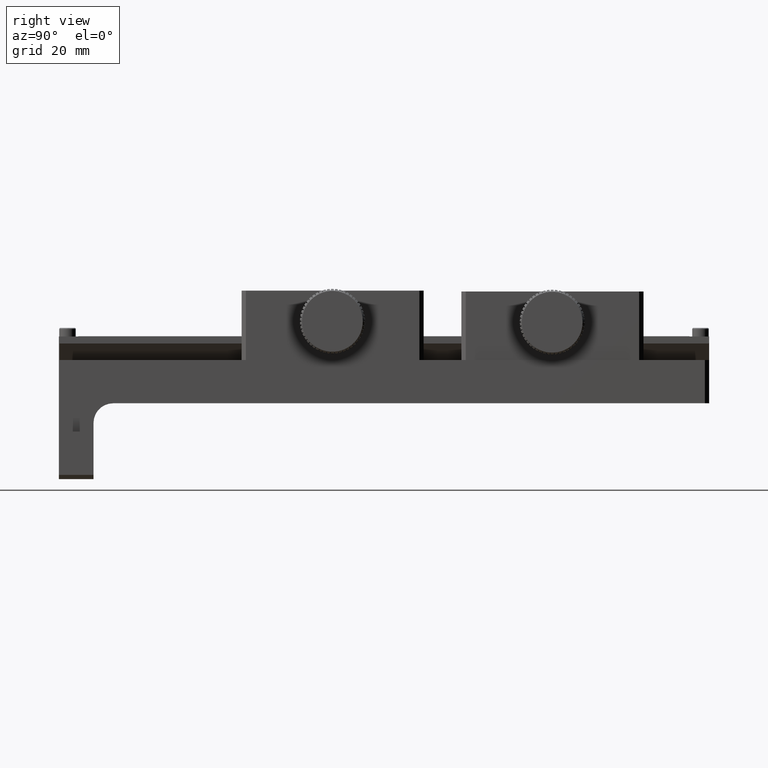
[diagram: clean part render]
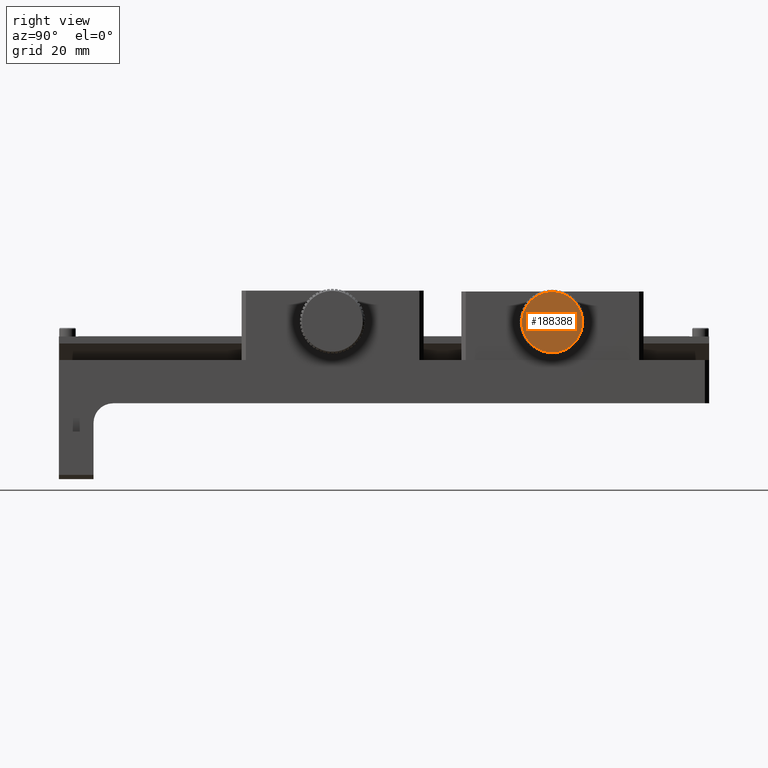
[diagram: same view with one face highlighted and labeled with its STEP entity id]
A machine part, right view. The second image highlights one B-rep face of the part: STEP entity #188388.
In plain terms, the highlighted planar face has unit normal (-1, -0, 0).
Its self-contained STEP definition (entity closure, byte-faithful):
#325 = AXIS2_PLACEMENT_3D ( 'NONE', #103545, #88315, #90604 ) ;
#489 = EDGE_CURVE ( 'NONE', #52226, #18737, #37637, .T. ) ;
#777 = DIRECTION ( 'NONE',  ( -1.000000000000000000, -4.527411761447626241E-16, 6.692592988999098575E-14 ) ) ;
#1100 = VERTEX_POINT ( 'NONE', #124711 ) ;
#1923 = DIRECTION ( 'NONE',  ( -1.000000000000000000, -4.527411761447626241E-16, 6.692592988999098575E-14 ) ) ;
#2503 = CARTESIAN_POINT ( 'NONE',  ( 12.52697930830791506, 41.86549050428735086, 14.25415882871138074 ) ) ;
#3370 = CARTESIAN_POINT ( 'NONE',  ( 12.52697930830785822, 41.86549050428735086, 14.25415882871140738 ) ) ;
#3838 = AXIS2_PLACEMENT_3D ( 'NONE', #112758, #777, #76572 ) ;
#4329 = ORIENTED_EDGE ( 'NONE', *, *, #15365, .F. ) ;
#4496 = VERTEX_POINT ( 'NONE', #43214 ) ;
#4638 = VERTEX_POINT ( 'NONE', #205485 ) ;
#5674 = CIRCLE ( 'NONE', #102613, 6.999999999999936939 ) ;
#6609 = CARTESIAN_POINT ( 'NONE',  ( 12.52697930830749939, 46.32745843252812534, 8.860566129280888603 ) ) ;
#6804 = DIRECTION ( 'NONE',  ( -1.000000000000000000, -4.527411761447626241E-16, 6.692592988999098575E-14 ) ) ;
#7002 = CARTESIAN_POINT ( 'NONE',  ( 12.52697930830825968, 38.11470293943445853, 20.16445430722546561 ) ) ;
#7832 = VERTEX_POINT ( 'NONE', #99018 ) ;
#7883 = AXIS2_PLACEMENT_3D ( 'NONE', #104887, #34812, #229837 ) ;
#8352 = CARTESIAN_POINT ( 'NONE',  ( 12.52697930830791506, 41.86549050428735086, 14.25415882871138074 ) ) ;
#8436 = AXIS2_PLACEMENT_3D ( 'NONE', #208652, #104656, #157247 ) ;
#8900 = VERTEX_POINT ( 'NONE', #180197 ) ;
#10147 = EDGE_CURVE ( 'NONE', #113579, #84496, #224842, .T. ) ;
#10447 = ORIENTED_EDGE ( 'NONE', *, *, #208896, .F. ) ;
#10583 = DIRECTION ( 'NONE',  ( -1.000000000000000000, -4.527411761447626241E-16, 6.692592988999098575E-14 ) ) ;
#10962 = AXIS2_PLACEMENT_3D ( 'NONE', #146842, #220393, #56922 ) ;
#11121 = CARTESIAN_POINT ( 'NONE',  ( 12.52697930830791506, 41.86549050428735086, 14.25415882871138074 ) ) ;
#11264 = CIRCLE ( 'NONE', #175415, 6.999999999999936939 ) ;
#11574 = EDGE_CURVE ( 'NONE', #212139, #196667, #57270, .T. ) ;
#11628 = DIRECTION ( 'NONE',  ( 6.691076264482030986E-14, 0.000000000000000000, 1.000000000000000000 ) ) ;
#12377 = ORIENTED_EDGE ( 'NONE', *, *, #54758, .F. ) ;
#12903 = CARTESIAN_POINT ( 'NONE',  ( 12.52697930830791506, 41.86549050428735086, 14.25415882871138074 ) ) ;
#13348 = CARTESIAN_POINT ( 'NONE',  ( 12.52697930830791506, 41.86549050428735086, 14.25415882871138074 ) ) ;
#15365 = EDGE_CURVE ( 'NONE', #54564, #163485, #64934, .T. ) ;
#16262 = DIRECTION ( 'NONE',  ( -1.000000000000000000, -7.632783294297948750E-17, 6.639133687258439898E-14 ) ) ;
#16510 = ORIENTED_EDGE ( 'NONE', *, *, #105110, .F. ) ;
#17120 = VERTEX_POINT ( 'NONE', #166814 ) ;
#18219 = CARTESIAN_POINT ( 'NONE',  ( 12.52697930830791506, 41.86549050428735086, 14.25415882871138074 ) ) ;
#18737 = VERTEX_POINT ( 'NONE', #131532 ) ;
#20120 = AXIS2_PLACEMENT_3D ( 'NONE', #98234, #28165, #136727 ) ;
#20235 = DIRECTION ( 'NONE',  ( 6.691076264482030986E-14, 0.000000000000000000, 1.000000000000000000 ) ) ;
#20558 = DIRECTION ( 'NONE',  ( 6.691076264482030986E-14, 0.000000000000000000, 1.000000000000000000 ) ) ;
#21733 = ORIENTED_EDGE ( 'NONE', *, *, #99523, .F. ) ;
#22076 = AXIS2_PLACEMENT_3D ( 'NONE', #49757, #209749, #205160 ) ;
#22821 = CARTESIAN_POINT ( 'NONE',  ( 12.52697930830791506, 41.86549050428735086, 14.25415882871138074 ) ) ;
#23560 = ORIENTED_EDGE ( 'NONE', *, *, #230252, .F. ) ;
#24016 = CARTESIAN_POINT ( 'NONE',  ( 12.52697930830769479, 35.35705510306964072, 11.67728695991869436 ) ) ;
#24426 = EDGE_CURVE ( 'NONE', #157085, #151548, #200203, .T. ) ;
#25282 = ORIENTED_EDGE ( 'NONE', *, *, #186649, .F. ) ;
#25676 = CARTESIAN_POINT ( 'NONE',  ( 12.52697930830791506, 41.86549050428735086, 14.25415882871138074 ) ) ;
#26155 = VERTEX_POINT ( 'NONE', #185908 ) ;
#26999 = VERTEX_POINT ( 'NONE', #188914 ) ;
#27553 = ORIENTED_EDGE ( 'NONE', *, *, #106524, .F. ) ;
#28165 = DIRECTION ( 'NONE',  ( -1.000000000000000000, -4.527411761447626241E-16, 6.692592988999098575E-14 ) ) ;
#28355 = ORIENTED_EDGE ( 'NONE', *, *, #61889, .F. ) ;
#28836 = CIRCLE ( 'NONE', #219032, 6.999999999999936939 ) ;
#29078 = AXIS2_PLACEMENT_3D ( 'NONE', #161285, #144930, #106411 ) ;
#30204 = VERTEX_POINT ( 'NONE', #79170 ) ;
#31527 = DIRECTION ( 'NONE',  ( 6.691076264482030986E-14, 0.000000000000000000, 1.000000000000000000 ) ) ;
#34393 = ORIENTED_EDGE ( 'NONE', *, *, #207864, .F. ) ;
#34657 = CARTESIAN_POINT ( 'NONE',  ( 12.52697930830791506, 41.86549050428735086, 14.25415882871138074 ) ) ;
#34761 = CARTESIAN_POINT ( 'NONE',  ( 12.52697930830743900, 38.88503546333184602, 7.920369461449312531 ) ) ;
#34812 = DIRECTION ( 'NONE',  ( -1.000000000000000000, -4.527411761447626241E-16, 6.692592988999098575E-14 ) ) ;
#35429 = AXIS2_PLACEMENT_3D ( 'NONE', #8352, #44477, #115696 ) ;
#35725 = DIRECTION ( 'NONE',  ( 6.691076264482030986E-14, 0.000000000000000000, 1.000000000000000000 ) ) ;
#36065 = FACE_OUTER_BOUND ( 'NONE', #87975, .T. ) ;
#36160 = CIRCLE ( 'NONE', #211552, 6.999999999999936939 ) ;
#36554 = VERTEX_POINT ( 'NONE', #59616 ) ;
#36590 = CARTESIAN_POINT ( 'NONE',  ( 12.52697930830791506, 41.86549050428735086, 14.25415882871138074 ) ) ;
#37285 = DIRECTION ( 'NONE',  ( -1.000000000000000000, -4.527411761447626241E-16, 6.692592988999098575E-14 ) ) ;
#37298 = DIRECTION ( 'NONE',  ( 6.691076264482030986E-14, 0.000000000000000000, 1.000000000000000000 ) ) ;
#37504 = EDGE_CURVE ( 'NONE', #175235, #26999, #134366, .T. ) ;
#37637 = CIRCLE ( 'NONE', #7883, 6.999999999999936939 ) ;
#38180 = CIRCLE ( 'NONE', #109032, 6.999999999999936939 ) ;
#41013 = AXIS2_PLACEMENT_3D ( 'NONE', #88200, #194460, #209699 ) ;
#41694 = CARTESIAN_POINT ( 'NONE',  ( 12.52697930830739459, 42.30502414099252206, 7.267971729713537776 ) ) ;
#42530 = CARTESIAN_POINT ( 'NONE',  ( 12.52697930830791506, 41.86549050428735086, 14.25415882871138074 ) ) ;
#43214 = CARTESIAN_POINT ( 'NONE',  ( 12.52697930830774276, 48.64557263218770800, 12.51332961855740855 ) ) ;
#44113 = DIRECTION ( 'NONE',  ( 6.691076264482030986E-14, 0.000000000000000000, 1.000000000000000000 ) ) ;
#44153 = VERTEX_POINT ( 'NONE', #61006 ) ;
#44477 = DIRECTION ( 'NONE',  ( -1.000000000000000000, -4.527411761447626241E-16, 6.692592988999098575E-14 ) ) ;
#45074 = VERTEX_POINT ( 'NONE', #196268 ) ;
#45468 = DIRECTION ( 'NONE',  ( -1.000000000000000000, -4.527411761447626241E-16, 6.692592988999098575E-14 ) ) ;
#45860 = VERTEX_POINT ( 'NONE', #163859 ) ;
#45912 = CARTESIAN_POINT ( 'NONE',  ( 12.52697930830828454, 44.84594554524290544, 20.58794819597342496 ) ) ;
#46025 = CIRCLE ( 'NONE', #90671, 6.999999999999936939 ) ;
#46776 = EDGE_CURVE ( 'NONE', #104142, #86520, #74309, .T. ) ;
#48188 = CARTESIAN_POINT ( 'NONE',  ( 12.52697930830791506, 41.86549050428735086, 14.25415882871138074 ) ) ;
#48407 = CIRCLE ( 'NONE', #119246, 6.999999999999936939 ) ;
#49321 = EDGE_CURVE ( 'NONE', #214814, #102227, #171518, .T. ) ;
#49757 = CARTESIAN_POINT ( 'NONE',  ( 12.52697930830791506, 41.86549050428735086, 14.25415882871138074 ) ) ;
#49878 = DIRECTION ( 'NONE',  ( 6.691076264482030986E-14, 0.000000000000000000, 1.000000000000000000 ) ) ;
#49961 = EDGE_CURVE ( 'NONE', #84496, #76665, #89471, .T. ) ;
#50449 = EDGE_CURVE ( 'NONE', #77730, #175235, #171691, .T. ) ;
#50553 = CARTESIAN_POINT ( 'NONE',  ( 12.52697930830791506, 41.86549050428735086, 14.25415882871138074 ) ) ;
#51330 = DIRECTION ( 'NONE',  ( 6.691076264482030986E-14, 0.000000000000000000, 1.000000000000000000 ) ) ;
#52226 = VERTEX_POINT ( 'NONE', #214666 ) ;
#52796 = DIRECTION ( 'NONE',  ( 6.691076264482030986E-14, 0.000000000000000000, 1.000000000000000000 ) ) ;
#53118 = AXIS2_PLACEMENT_3D ( 'NONE', #25676, #170414, #95731 ) ;
#53803 = EDGE_CURVE ( 'NONE', #18737, #7832, #171846, .T. ) ;
#54564 = VERTEX_POINT ( 'NONE', #117361 ) ;
#54663 = ORIENTED_EDGE ( 'NONE', *, *, #49961, .F. ) ;
#54758 = EDGE_CURVE ( 'NONE', #73998, #8900, #60142, .T. ) ;
#55299 = CARTESIAN_POINT ( 'NONE',  ( 12.52697930830741591, 44.02860946491195193, 7.596763214645356754 ) ) ;
#56216 = DIRECTION ( 'NONE',  ( -1.000000000000000000, -4.527411761447626241E-16, 6.692592988999098575E-14 ) ) ;
#56272 = CARTESIAN_POINT ( 'NONE',  ( 12.52697930830754025, 46.96827089623717910, 9.462329087210591183 ) ) ;
#56840 = AXIS2_PLACEMENT_3D ( 'NONE', #18219, #74223, #35725 ) ;
#56922 = DIRECTION ( 'NONE',  ( 6.691076264482030986E-14, 0.000000000000000000, 1.000000000000000000 ) ) ;
#57270 = CIRCLE ( 'NONE', #184008, 6.999999999999936939 ) ;
#57331 = DIRECTION ( 'NONE',  ( -1.000000000000000000, -4.527411761447626241E-16, 6.692592988999098575E-14 ) ) ;
#58438 = AXIS2_PLACEMENT_3D ( 'NONE', #50553, #230362, #175510 ) ;
#58525 = CARTESIAN_POINT ( 'NONE',  ( 12.52697930830791506, 41.86549050428735086, 14.25415882871138074 ) ) ;
#58898 = CIRCLE ( 'NONE', #29078, 6.999999999999936939 ) ;
#59616 = CARTESIAN_POINT ( 'NONE',  ( 12.52697930830817974, 46.96827089623725016, 19.04598857021209923 ) ) ;
#60128 = ORIENTED_EDGE ( 'NONE', *, *, #49321, .F. ) ;
#60142 = CIRCLE ( 'NONE', #224182, 6.999999999999936939 ) ;
#60646 = AXIS2_PLACEMENT_3D ( 'NONE', #149457, #45468, #148305 ) ;
#61006 = CARTESIAN_POINT ( 'NONE',  ( 12.52697930830828810, 38.88503546333193839, 20.58794819597348891 ) ) ;
#61340 = DIRECTION ( 'NONE',  ( -1.000000000000000000, -4.527411761447626241E-16, 6.692592988999098575E-14 ) ) ;
#61889 = EDGE_CURVE ( 'NONE', #86520, #193539, #195229, .T. ) ;
#62347 = ORIENTED_EDGE ( 'NONE', *, *, #108487, .F. ) ;
#63063 = CARTESIAN_POINT ( 'NONE',  ( 12.52697930830743545, 44.84594554524282017, 7.920369461449292103 ) ) ;
#63235 = CIRCLE ( 'NONE', #223631, 6.999999999999936939 ) ;
#63327 = AXIS2_PLACEMENT_3D ( 'NONE', #153837, #167909, #44113 ) ;
#63880 = CARTESIAN_POINT ( 'NONE',  ( 12.52697930830791506, 41.86549050428735086, 14.25415882871138074 ) ) ;
#64141 = VERTEX_POINT ( 'NONE', #63063 ) ;
#64485 = CIRCLE ( 'NONE', #53118, 6.999999999999936939 ) ;
#64934 = CIRCLE ( 'NONE', #120790, 6.999999999999936939 ) ;
#65694 = CARTESIAN_POINT ( 'NONE',  ( 12.52697930830758288, 47.52860946491193062, 10.13966206266409742 ) ) ;
#68699 = CARTESIAN_POINT ( 'NONE',  ( 12.52697930830786355, 34.86549050428741481, 14.25415882871138251 ) ) ;
#68846 = AXIS2_PLACEMENT_3D ( 'NONE', #58525, #56216, #127444 ) ;
#71998 = DIRECTION ( 'NONE',  ( -1.000000000000000000, -4.527411761447626241E-16, 6.692592988999098575E-14 ) ) ;
#72118 = CIRCLE ( 'NONE', #90776, 6.999999999999936939 ) ;
#72304 = ORIENTED_EDGE ( 'NONE', *, *, #177537, .F. ) ;
#72338 = CARTESIAN_POINT ( 'NONE',  ( 12.52697930830791506, 41.86549050428735086, 14.25415882871138074 ) ) ;
#72404 = ORIENTED_EDGE ( 'NONE', *, *, #118970, .F. ) ;
#73027 = ORIENTED_EDGE ( 'NONE', *, *, #219308, .F. ) ;
#73692 = DIRECTION ( 'NONE',  ( -1.000000000000000000, -4.527411761447626241E-16, 6.692592988999098575E-14 ) ) ;
#73998 = VERTEX_POINT ( 'NONE', #6609 ) ;
#74183 = VERTEX_POINT ( 'NONE', #65694 ) ;
#74223 = DIRECTION ( 'NONE',  ( -1.000000000000000000, -4.527411761447626241E-16, 6.692592988999098575E-14 ) ) ;
#74309 = CIRCLE ( 'NONE', #204858, 6.999999999999936939 ) ;
#74490 = EDGE_CURVE ( 'NONE', #196667, #120217, #203045, .T. ) ;
#74985 = ORIENTED_EDGE ( 'NONE', *, *, #225539, .F. ) ;
#75240 = EDGE_CURVE ( 'NONE', #8900, #64141, #117391, .T. ) ;
#75795 = DIRECTION ( 'NONE',  ( -1.000000000000000000, -4.527411761447626241E-16, 6.692592988999098575E-14 ) ) ;
#76572 = DIRECTION ( 'NONE',  ( 6.691076264482030986E-14, 0.000000000000000000, 1.000000000000000000 ) ) ;
#76665 = VERTEX_POINT ( 'NONE', #41694 ) ;
#77206 = AXIS2_PLACEMENT_3D ( 'NONE', #89514, #71998, #121112 ) ;
#77730 = VERTEX_POINT ( 'NONE', #68699 ) ;
#77921 = CIRCLE ( 'NONE', #212112, 6.999999999999936939 ) ;
#78081 = CIRCLE ( 'NONE', #104075, 6.999999999999936939 ) ;
#79170 = CARTESIAN_POINT ( 'NONE',  ( 12.52697930830763262, 47.99963726459433389, 10.88188310999939468 ) ) ;
#79965 = DIRECTION ( 'NONE',  ( -1.000000000000000000, -4.527411761447626241E-16, 6.692592988999098575E-14 ) ) ;
#81042 = ORIENTED_EDGE ( 'NONE', *, *, #106012, .F. ) ;
#84496 = VERTEX_POINT ( 'NONE', #201689 ) ;
#84996 = CIRCLE ( 'NONE', #155868, 6.999999999999936939 ) ;
#85202 = CARTESIAN_POINT ( 'NONE',  ( 12.52697930830774808, 35.08540837638697951, 12.51332961855745829 ) ) ;
#86381 = DIRECTION ( 'NONE',  ( -1.000000000000000000, -4.527411761447626241E-16, 6.692592988999098575E-14 ) ) ;
#86520 = VERTEX_POINT ( 'NONE', #132239 ) ;
#87035 = AXIS2_PLACEMENT_3D ( 'NONE', #11121, #153531, #154682 ) ;
#87321 = ORIENTED_EDGE ( 'NONE', *, *, #148919, .F. ) ;
#87461 = ORIENTED_EDGE ( 'NONE', *, *, #74490, .F. ) ;
#87807 = DIRECTION ( 'NONE',  ( 6.691076264482030986E-14, 0.000000000000000000, 1.000000000000000000 ) ) ;
#87975 = EDGE_LOOP ( 'NONE', ( #25282, #215171, #21733, #154826, #178734, #143554, #178099, #72404, #28355, #114783, #62347, #184770, #10447, #97869, #72304, #4329, #87321, #132699, #87461, #150898, #192396, #73027, #60128, #155872, #198132, #121510, #27553, #202044, #182919, #132659, #115540, #175260, #199503, #114245, #16510, #74985, #90923, #34393, #135851, #54663, #134675, #211051, #139985, #12377, #81042, #99252, #23560, #105086, #107306, #153087 ) ) ;
#88200 = CARTESIAN_POINT ( 'NONE',  ( 12.52697930830791506, 41.86549050428735086, 14.25415882871138074 ) ) ;
#88315 = DIRECTION ( 'NONE',  ( -1.000000000000000000, -4.527411761447626241E-16, 6.692592988999098575E-14 ) ) ;
#88448 = EDGE_CURVE ( 'NONE', #7832, #112987, #95874, .T. ) ;
#89471 = CIRCLE ( 'NONE', #130492, 6.999999999999936939 ) ;
#89514 = CARTESIAN_POINT ( 'NONE',  ( 12.52697930830791506, 41.86549050428735086, 14.25415882871138074 ) ) ;
#90012 = CARTESIAN_POINT ( 'NONE',  ( 12.52697930830797546, 48.64557263218773642, 15.99498803886525344 ) ) ;
#90604 = DIRECTION ( 'NONE',  ( 6.691076264482030986E-14, 0.000000000000000000, 1.000000000000000000 ) ) ;
#90671 = AXIS2_PLACEMENT_3D ( 'NONE', #93105, #203985, #95417 ) ;
#90725 = DIRECTION ( 'NONE',  ( -1.000000000000000000, -4.527411761447626241E-16, 6.692592988999098575E-14 ) ) ;
#90776 = AXIS2_PLACEMENT_3D ( 'NONE', #12903, #86381, #51330 ) ;
#90923 = ORIENTED_EDGE ( 'NONE', *, *, #118740, .F. ) ;
#91008 = CARTESIAN_POINT ( 'NONE',  ( 12.52697930830791506, 41.86549050428735086, 14.25415882871138074 ) ) ;
#91176 = CIRCLE ( 'NONE', #109834, 6.999999999999936939 ) ;
#91711 = DIRECTION ( 'NONE',  ( 6.691076264482030986E-14, 0.000000000000000000, 1.000000000000000000 ) ) ;
#91869 = CARTESIAN_POINT ( 'NONE',  ( 12.52697930830791506, 41.86549050428735086, 14.25415882871138074 ) ) ;
#91917 = CIRCLE ( 'NONE', #58438, 6.999999999999936939 ) ;
#92088 = CIRCLE ( 'NONE', #222645, 6.999999999999936939 ) ;
#92409 = CIRCLE ( 'NONE', #208112, 6.999999999999936939 ) ;
#93105 = CARTESIAN_POINT ( 'NONE',  ( 12.52697930830791506, 41.86549050428735086, 14.25415882871138074 ) ) ;
#94617 = CARTESIAN_POINT ( 'NONE',  ( 12.52697930830803763, 35.35705510306966914, 16.83103069750415415 ) ) ;
#95417 = DIRECTION ( 'NONE',  ( 6.691076264482030986E-14, 0.000000000000000000, 1.000000000000000000 ) ) ;
#95731 = DIRECTION ( 'NONE',  ( 6.691076264482030986E-14, 0.000000000000000000, 1.000000000000000000 ) ) ;
#95762 = VERTEX_POINT ( 'NONE', #102240 ) ;
#95874 = CIRCLE ( 'NONE', #77206, 6.999999999999936939 ) ;
#96552 = CARTESIAN_POINT ( 'NONE',  ( 12.52697930830792572, 34.92068759508607911, 15.13149146366155051 ) ) ;
#96894 = EDGE_CURVE ( 'NONE', #169756, #4496, #219039, .T. ) ;
#97548 = CARTESIAN_POINT ( 'NONE',  ( 12.52697930830818507, 36.76271011233755814, 19.04598857021220937 ) ) ;
#97869 = ORIENTED_EDGE ( 'NONE', *, *, #105584, .F. ) ;
#97988 = CIRCLE ( 'NONE', #60646, 6.999999999999936939 ) ;
#98234 = CARTESIAN_POINT ( 'NONE',  ( 12.52697930830791506, 41.86549050428735086, 14.25415882871138074 ) ) ;
#98577 = VERTEX_POINT ( 'NONE', #151122 ) ;
#99018 = CARTESIAN_POINT ( 'NONE',  ( 12.52697930830763973, 35.73134374398033941, 10.88188310999943553 ) ) ;
#99252 = ORIENTED_EDGE ( 'NONE', *, *, #210488, .F. ) ;
#99263 = DIRECTION ( 'NONE',  ( 6.691076264482030986E-14, 0.000000000000000000, 1.000000000000000000 ) ) ;
#99523 = EDGE_CURVE ( 'NONE', #153490, #26155, #215346, .T. ) ;
#102227 = VERTEX_POINT ( 'NONE', #151584 ) ;
#102240 = CARTESIAN_POINT ( 'NONE',  ( 12.52697930830832185, 43.17715970638749212, 21.13016958381212618 ) ) ;
#102432 = EDGE_CURVE ( 'NONE', #26999, #214814, #84996, .T. ) ;
#102613 = AXIS2_PLACEMENT_3D ( 'NONE', #110790, #182058, #145839 ) ;
#103169 = CIRCLE ( 'NONE', #211362, 6.999999999999936939 ) ;
#103545 = CARTESIAN_POINT ( 'NONE',  ( 12.52697930830791506, 41.86549050428735086, 14.25415882871138074 ) ) ;
#104075 = AXIS2_PLACEMENT_3D ( 'NONE', #34657, #194627, #49878 ) ;
#104142 = VERTEX_POINT ( 'NONE', #45912 ) ;
#104339 = CARTESIAN_POINT ( 'NONE',  ( 12.52697930830791506, 41.86549050428735086, 14.25415882871138074 ) ) ;
#104656 = DIRECTION ( 'NONE',  ( -1.000000000000000000, -4.527411761447626241E-16, 6.692592988999098575E-14 ) ) ;
#104887 = CARTESIAN_POINT ( 'NONE',  ( 12.52697930830791506, 41.86549050428735086, 14.25415882871138074 ) ) ;
#105086 = ORIENTED_EDGE ( 'NONE', *, *, #208430, .F. ) ;
#105110 = EDGE_CURVE ( 'NONE', #114719, #45860, #77921, .T. ) ;
#105584 = EDGE_CURVE ( 'NONE', #158239, #4638, #197247, .T. ) ;
#106012 = EDGE_CURVE ( 'NONE', #125249, #73998, #182439, .T. ) ;
#106411 = DIRECTION ( 'NONE',  ( 6.691076264482030986E-14, 0.000000000000000000, 1.000000000000000000 ) ) ;
#106524 = EDGE_CURVE ( 'NONE', #151548, #77730, #78081, .T. ) ;
#107286 = DIRECTION ( 'NONE',  ( 6.639133687258439898E-14, 0.000000000000000000, 1.000000000000000000 ) ) ;
#107306 = ORIENTED_EDGE ( 'NONE', *, *, #196703, .F. ) ;
#107803 = DIRECTION ( 'NONE',  ( -1.000000000000000000, -4.527411761447626241E-16, 6.692592988999098575E-14 ) ) ;
#108487 = EDGE_CURVE ( 'NONE', #17120, #104142, #63235, .T. ) ;
#108941 = EDGE_CURVE ( 'NONE', #112987, #157085, #48407, .T. ) ;
#109032 = AXIS2_PLACEMENT_3D ( 'NONE', #63880, #6804, #152643 ) ;
#109042 = VERTEX_POINT ( 'NONE', #113857 ) ;
#109834 = AXIS2_PLACEMENT_3D ( 'NONE', #137798, #153030, #31527 ) ;
#109865 = DIRECTION ( 'NONE',  ( 6.691076264482030986E-14, 0.000000000000000000, 1.000000000000000000 ) ) ;
#110790 = CARTESIAN_POINT ( 'NONE',  ( 12.52697930830791506, 41.86549050428735086, 14.25415882871138074 ) ) ;
#110822 = DIRECTION ( 'NONE',  ( -1.000000000000000000, -4.527411761447626241E-16, 6.692592988999098575E-14 ) ) ;
#111523 = CARTESIAN_POINT ( 'NONE',  ( 12.52697930830822415, 37.40352257604661901, 19.64775152814189596 ) ) ;
#111545 = DIRECTION ( 'NONE',  ( 6.691076264482030986E-14, 0.000000000000000000, 1.000000000000000000 ) ) ;
#111889 = CIRCLE ( 'NONE', #182752, 6.999999999999936939 ) ;
#112758 = CARTESIAN_POINT ( 'NONE',  ( 12.52697930830791506, 41.86549050428735086, 14.25415882871138074 ) ) ;
#112987 = VERTEX_POINT ( 'NONE', #24016 ) ;
#113579 = VERTEX_POINT ( 'NONE', #55299 ) ;
#113689 = VERTEX_POINT ( 'NONE', #148761 ) ;
#113764 = DIRECTION ( 'NONE',  ( -1.000000000000000000, -4.527411761447626241E-16, 6.692592988999098575E-14 ) ) ;
#113857 = CARTESIAN_POINT ( 'NONE',  ( 12.52697930830741768, 39.70237154366271426, 7.596763214645377182 ) ) ;
#114245 = ORIENTED_EDGE ( 'NONE', *, *, #144553, .F. ) ;
#114559 = DIRECTION ( 'NONE',  ( -1.000000000000000000, -4.527411761447626241E-16, 6.692592988999098575E-14 ) ) ;
#114719 = VERTEX_POINT ( 'NONE', #34761 ) ;
#114783 = ORIENTED_EDGE ( 'NONE', *, *, #46776, .F. ) ;
#115540 = ORIENTED_EDGE ( 'NONE', *, *, #53803, .F. ) ;
#115696 = DIRECTION ( 'NONE',  ( 6.691076264482030986E-14, 0.000000000000000000, 1.000000000000000000 ) ) ;
#115701 = DIRECTION ( 'NONE',  ( 6.691076264482030986E-14, 0.000000000000000000, 1.000000000000000000 ) ) ;
#117151 = CIRCLE ( 'NONE', #20120, 6.999999999999936939 ) ;
#117361 = CARTESIAN_POINT ( 'NONE',  ( 12.52697930830830941, 39.70237154366279952, 20.91155444277741182 ) ) ;
#117391 = CIRCLE ( 'NONE', #68846, 6.999999999999936939 ) ;
#118351 = DIRECTION ( 'NONE',  ( -1.000000000000000000, -4.527411761447626241E-16, 6.692592988999098575E-14 ) ) ;
#118353 = VERTEX_POINT ( 'NONE', #221824 ) ;
#118530 = EDGE_CURVE ( 'NONE', #26155, #45074, #64485, .T. ) ;
#118740 = EDGE_CURVE ( 'NONE', #195575, #109042, #97988, .T. ) ;
#118970 = EDGE_CURVE ( 'NONE', #193539, #36554, #142673, .T. ) ;
#119246 = AXIS2_PLACEMENT_3D ( 'NONE', #22821, #165281, #111545 ) ;
#120217 = VERTEX_POINT ( 'NONE', #7002 ) ;
#120585 = DIRECTION ( 'NONE',  ( -1.000000000000000000, -4.527411761447626241E-16, 6.692592988999098575E-14 ) ) ;
#120790 = AXIS2_PLACEMENT_3D ( 'NONE', #216174, #57331, #196343 ) ;
#121112 = DIRECTION ( 'NONE',  ( 6.691076264482030986E-14, 0.000000000000000000, 1.000000000000000000 ) ) ;
#121510 = ORIENTED_EDGE ( 'NONE', *, *, #50449, .F. ) ;
#123305 = DIRECTION ( 'NONE',  ( -1.000000000000000000, -4.527411761447626241E-16, 6.692592988999098575E-14 ) ) ;
#124711 = CARTESIAN_POINT ( 'NONE',  ( 12.52697930830768769, 48.37392590550506100, 11.67728695991865528 ) ) ;
#125249 = VERTEX_POINT ( 'NONE', #56272 ) ;
#126034 = CARTESIAN_POINT ( 'NONE',  ( 12.52697930830791506, 41.86549050428735086, 14.25415882871138074 ) ) ;
#127444 = DIRECTION ( 'NONE',  ( 6.691076264482030986E-14, 0.000000000000000000, 1.000000000000000000 ) ) ;
#128732 = CARTESIAN_POINT ( 'NONE',  ( 12.52697930830750295, 37.40352257604654085, 8.860566129280918801 ) ) ;
#129208 = EDGE_CURVE ( 'NONE', #98577, #153490, #72118, .T. ) ;
#130492 = AXIS2_PLACEMENT_3D ( 'NONE', #139756, #1923, #20558 ) ;
#130665 = CARTESIAN_POINT ( 'NONE',  ( 12.52697930830813711, 47.52860946491198746, 18.36865559475857879 ) ) ;
#131532 = CARTESIAN_POINT ( 'NONE',  ( 12.52697930830758999, 36.20237154366275689, 10.13966206266413117 ) ) ;
#132239 = CARTESIAN_POINT ( 'NONE',  ( 12.52697930830825612, 45.61627806914037109, 20.16445430722539101 ) ) ;
#132416 = EDGE_CURVE ( 'NONE', #120217, #44153, #117151, .T. ) ;
#132446 = CARTESIAN_POINT ( 'NONE',  ( 12.52697930830791506, 41.86549050428735086, 14.25415882871138074 ) ) ;
#132659 = ORIENTED_EDGE ( 'NONE', *, *, #88448, .F. ) ;
#132699 = ORIENTED_EDGE ( 'NONE', *, *, #132416, .F. ) ;
#134366 = CIRCLE ( 'NONE', #41013, 6.999999999999936939 ) ;
#134675 = ORIENTED_EDGE ( 'NONE', *, *, #10147, .F. ) ;
#135851 = ORIENTED_EDGE ( 'NONE', *, *, #166696, .F. ) ;
#136727 = DIRECTION ( 'NONE',  ( 6.691076264482030986E-14, 0.000000000000000000, 1.000000000000000000 ) ) ;
#137798 = CARTESIAN_POINT ( 'NONE',  ( 12.52697930830791506, 41.86549050428735086, 14.25415882871138074 ) ) ;
#138666 = DIRECTION ( 'NONE',  ( -1.000000000000000000, -4.527411761447626241E-16, 6.692592988999098575E-14 ) ) ;
#139001 = EDGE_CURVE ( 'NONE', #64141, #113579, #151143, .T. ) ;
#139598 = EDGE_CURVE ( 'NONE', #220206, #113689, #5674, .T. ) ;
#139756 = CARTESIAN_POINT ( 'NONE',  ( 12.52697930830791506, 41.86549050428735086, 14.25415882871138074 ) ) ;
#139985 = ORIENTED_EDGE ( 'NONE', *, *, #75240, .F. ) ;
#140674 = AXIS2_PLACEMENT_3D ( 'NONE', #42530, #118351, #188446 ) ;
#142673 = CIRCLE ( 'NONE', #157669, 6.999999999999936939 ) ;
#143554 = ORIENTED_EDGE ( 'NONE', *, *, #139598, .F. ) ;
#144553 = EDGE_CURVE ( 'NONE', #45860, #146422, #91917, .T. ) ;
#144930 = DIRECTION ( 'NONE',  ( -1.000000000000000000, -4.527411761447626241E-16, 6.692592988999098575E-14 ) ) ;
#145839 = DIRECTION ( 'NONE',  ( 6.691076264482030986E-14, 0.000000000000000000, 1.000000000000000000 ) ) ;
#146422 = VERTEX_POINT ( 'NONE', #128732 ) ;
#146842 = CARTESIAN_POINT ( 'NONE',  ( 12.52697930830791506, 41.86549050428735086, 14.25415882871138074 ) ) ;
#148305 = DIRECTION ( 'NONE',  ( 6.691076264482030986E-14, 0.000000000000000000, 1.000000000000000000 ) ) ;
#148761 = CARTESIAN_POINT ( 'NONE',  ( 12.52697930830808559, 47.99963726459438362, 17.62643454742326909 ) ) ;
#148919 = EDGE_CURVE ( 'NONE', #44153, #54564, #92088, .T. ) ;
#149457 = CARTESIAN_POINT ( 'NONE',  ( 12.52697930830791506, 41.86549050428735086, 14.25415882871138074 ) ) ;
#150242 = DIRECTION ( 'NONE',  ( 6.691076264482030986E-14, 0.000000000000000000, 1.000000000000000000 ) ) ;
#150898 = ORIENTED_EDGE ( 'NONE', *, *, #11574, .F. ) ;
#151122 = CARTESIAN_POINT ( 'NONE',  ( 12.52697930830803230, 48.37392590550508231, 16.83103069750401204 ) ) ;
#151143 = CIRCLE ( 'NONE', #35429, 6.999999999999936939 ) ;
#151251 = DIRECTION ( 'NONE',  ( 6.691076264482030986E-14, 0.000000000000000000, 1.000000000000000000 ) ) ;
#151548 = VERTEX_POINT ( 'NONE', #217062 ) ;
#151584 = CARTESIAN_POINT ( 'NONE',  ( 12.52697930830808914, 35.73134374398038915, 17.62643454742340765 ) ) ;
#152125 = AXIS2_PLACEMENT_3D ( 'NONE', #126034, #37285, #230004 ) ;
#152546 = CARTESIAN_POINT ( 'NONE',  ( 12.52697930830791506, 41.86549050428735086, 14.25415882871138074 ) ) ;
#152643 = DIRECTION ( 'NONE',  ( 6.691076264482030986E-14, 0.000000000000000000, 1.000000000000000000 ) ) ;
#152679 = CARTESIAN_POINT ( 'NONE',  ( 12.52697930830791506, 41.86549050428735086, 14.25415882871138074 ) ) ;
#152687 = DIRECTION ( 'NONE',  ( 6.691076264482030986E-14, 0.000000000000000000, 1.000000000000000000 ) ) ;
#153030 = DIRECTION ( 'NONE',  ( -1.000000000000000000, -4.527411761447626241E-16, 6.692592988999098575E-14 ) ) ;
#153087 = ORIENTED_EDGE ( 'NONE', *, *, #96894, .F. ) ;
#153490 = VERTEX_POINT ( 'NONE', #90012 ) ;
#153531 = DIRECTION ( 'NONE',  ( -1.000000000000000000, -4.527411761447626241E-16, 6.692592988999098575E-14 ) ) ;
#153837 = CARTESIAN_POINT ( 'NONE',  ( 12.52697930830791506, 41.86549050428735086, 14.25415882871138074 ) ) ;
#154404 = DIRECTION ( 'NONE',  ( -1.000000000000000000, -4.527411761447626241E-16, 6.692592988999098575E-14 ) ) ;
#154503 = CARTESIAN_POINT ( 'NONE',  ( 12.52697930830791506, 41.86549050428735086, 14.25415882871138074 ) ) ;
#154682 = DIRECTION ( 'NONE',  ( 6.691076264482030986E-14, 0.000000000000000000, 1.000000000000000000 ) ) ;
#154826 = ORIENTED_EDGE ( 'NONE', *, *, #129208, .F. ) ;
#155868 = AXIS2_PLACEMENT_3D ( 'NONE', #157348, #138666, #228575 ) ;
#155872 = ORIENTED_EDGE ( 'NONE', *, *, #102432, .F. ) ;
#157085 = VERTEX_POINT ( 'NONE', #85202 ) ;
#157247 = DIRECTION ( 'NONE',  ( 6.691076264482030986E-14, 0.000000000000000000, 1.000000000000000000 ) ) ;
#157348 = CARTESIAN_POINT ( 'NONE',  ( 12.52697930830791506, 41.86549050428735086, 14.25415882871138074 ) ) ;
#157566 = CIRCLE ( 'NONE', #56840, 6.999999999999936939 ) ;
#157669 = AXIS2_PLACEMENT_3D ( 'NONE', #194794, #207746, #11628 ) ;
#158239 = VERTEX_POINT ( 'NONE', #214371 ) ;
#158391 = AXIS2_PLACEMENT_3D ( 'NONE', #48188, #190655, #87807 ) ;
#161285 = CARTESIAN_POINT ( 'NONE',  ( 12.52697930830791506, 41.86549050428735086, 14.25415882871138074 ) ) ;
#163397 = AXIS2_PLACEMENT_3D ( 'NONE', #3370, #16262, #107286 ) ;
#163485 = VERTEX_POINT ( 'NONE', #167363 ) ;
#163859 = CARTESIAN_POINT ( 'NONE',  ( 12.52697930830746920, 38.11470293943438037, 8.343863350197350925 ) ) ;
#164018 = EDGE_CURVE ( 'NONE', #113689, #98577, #46025, .T. ) ;
#165281 = DIRECTION ( 'NONE',  ( -1.000000000000000000, -4.527411761447626241E-16, 6.692592988999098575E-14 ) ) ;
#166696 = EDGE_CURVE ( 'NONE', #76665, #118353, #195338, .T. ) ;
#166814 = CARTESIAN_POINT ( 'NONE',  ( 12.52697930830830586, 44.02860946491204430, 20.91155444277736919 ) ) ;
#167363 = CARTESIAN_POINT ( 'NONE',  ( 12.52697930830832362, 40.55382130218735881, 21.13016958381215460 ) ) ;
#167909 = DIRECTION ( 'NONE',  ( -1.000000000000000000, -4.527411761447626241E-16, 6.692592988999098575E-14 ) ) ;
#168984 = AXIS2_PLACEMENT_3D ( 'NONE', #104339, #193101, #229292 ) ;
#169049 = DIRECTION ( 'NONE',  ( 6.691076264482030986E-14, 0.000000000000000000, 1.000000000000000000 ) ) ;
#169057 = DIRECTION ( 'NONE',  ( -1.000000000000000000, -4.527411761447626241E-16, 6.692592988999098575E-14 ) ) ;
#169756 = VERTEX_POINT ( 'NONE', #181160 ) ;
#170414 = DIRECTION ( 'NONE',  ( -1.000000000000000000, -4.527411761447626241E-16, 6.692592988999098575E-14 ) ) ;
#170739 = EDGE_CURVE ( 'NONE', #36554, #220206, #91176, .T. ) ;
#171518 = CIRCLE ( 'NONE', #63327, 6.999999999999936939 ) ;
#171691 = CIRCLE ( 'NONE', #3838, 6.999999999999936939 ) ;
#171846 = CIRCLE ( 'NONE', #325, 6.999999999999936939 ) ;
#173369 = CARTESIAN_POINT ( 'NONE',  ( 12.52697930830791506, 41.86549050428735086, 14.25415882871138074 ) ) ;
#174029 = CIRCLE ( 'NONE', #207549, 6.999999999999936939 ) ;
#175235 = VERTEX_POINT ( 'NONE', #96552 ) ;
#175260 = ORIENTED_EDGE ( 'NONE', *, *, #489, .F. ) ;
#175415 = AXIS2_PLACEMENT_3D ( 'NONE', #207188, #187394, #189687 ) ;
#175510 = DIRECTION ( 'NONE',  ( 6.691076264482030986E-14, 0.000000000000000000, 1.000000000000000000 ) ) ;
#177537 = EDGE_CURVE ( 'NONE', #163485, #158239, #178085, .T. ) ;
#178085 = CIRCLE ( 'NONE', #152125, 6.999999999999936939 ) ;
#178099 = ORIENTED_EDGE ( 'NONE', *, *, #170739, .F. ) ;
#178734 = ORIENTED_EDGE ( 'NONE', *, *, #164018, .F. ) ;
#179887 = CIRCLE ( 'NONE', #8436, 6.999999999999936939 ) ;
#180197 = CARTESIAN_POINT ( 'NONE',  ( 12.52697930830746564, 45.61627806914027872, 8.343863350197315398 ) ) ;
#181160 = CARTESIAN_POINT ( 'NONE',  ( 12.52697930830779960, 48.81029341348863682, 13.37682619376125537 ) ) ;
#182058 = DIRECTION ( 'NONE',  ( -1.000000000000000000, -4.527411761447626241E-16, 6.692592988999098575E-14 ) ) ;
#182439 = CIRCLE ( 'NONE', #22076, 6.999999999999936939 ) ;
#182752 = AXIS2_PLACEMENT_3D ( 'NONE', #13348, #79965, #204902 ) ;
#182919 = ORIENTED_EDGE ( 'NONE', *, *, #108941, .F. ) ;
#184008 = AXIS2_PLACEMENT_3D ( 'NONE', #91008, #110822, #199575 ) ;
#184770 = ORIENTED_EDGE ( 'NONE', *, *, #186547, .F. ) ;
#185020 = DIRECTION ( 'NONE',  ( 6.691076264482030986E-14, 0.000000000000000000, 1.000000000000000000 ) ) ;
#185908 = CARTESIAN_POINT ( 'NONE',  ( 12.52697930830791684, 48.81029341348864392, 15.13149146366140485 ) ) ;
#186547 = EDGE_CURVE ( 'NONE', #95762, #17120, #92409, .T. ) ;
#186649 = EDGE_CURVE ( 'NONE', #45074, #169756, #58898, .T. ) ;
#186959 = CARTESIAN_POINT ( 'NONE',  ( 12.52697930830791506, 41.86549050428735086, 14.25415882871138074 ) ) ;
#187072 = CIRCLE ( 'NONE', #209903, 6.999999999999936939 ) ;
#187394 = DIRECTION ( 'NONE',  ( -1.000000000000000000, -4.527411761447626241E-16, 6.692592988999098575E-14 ) ) ;
#187739 = CARTESIAN_POINT ( 'NONE',  ( 12.52697930830791506, 41.86549050428735086, 14.25415882871138074 ) ) ;
#187890 = AXIS2_PLACEMENT_3D ( 'NONE', #188041, #10583, #99263 ) ;
#188041 = CARTESIAN_POINT ( 'NONE',  ( 12.52697930830791506, 41.86549050428735086, 14.25415882871138074 ) ) ;
#188388 = ADVANCED_FACE ( 'NONE', ( #36065 ), #212421, .F. ) ;
#188446 = DIRECTION ( 'NONE',  ( 6.691076264482030986E-14, 0.000000000000000000, 1.000000000000000000 ) ) ;
#188914 = CARTESIAN_POINT ( 'NONE',  ( 12.52697930830798256, 35.08540837638700793, 15.99498803886539910 ) ) ;
#189687 = DIRECTION ( 'NONE',  ( 6.691076264482030986E-14, 0.000000000000000000, 1.000000000000000000 ) ) ;
#190655 = DIRECTION ( 'NONE',  ( -1.000000000000000000, -4.527411761447626241E-16, 6.692592988999098575E-14 ) ) ;
#192396 = ORIENTED_EDGE ( 'NONE', *, *, #197054, .F. ) ;
#193101 = DIRECTION ( 'NONE',  ( -1.000000000000000000, -4.527411761447626241E-16, 6.692592988999098575E-14 ) ) ;
#193539 = VERTEX_POINT ( 'NONE', #230204 ) ;
#194460 = DIRECTION ( 'NONE',  ( -1.000000000000000000, -4.527411761447626241E-16, 6.692592988999098575E-14 ) ) ;
#194627 = DIRECTION ( 'NONE',  ( -1.000000000000000000, -4.527411761447626241E-16, 6.692592988999098575E-14 ) ) ;
#194794 = CARTESIAN_POINT ( 'NONE',  ( 12.52697930830791506, 41.86549050428735086, 14.25415882871138074 ) ) ;
#195229 = CIRCLE ( 'NONE', #87035, 6.999999999999936939 ) ;
#195338 = CIRCLE ( 'NONE', #187890, 6.999999999999936939 ) ;
#195575 = VERTEX_POINT ( 'NONE', #196223 ) ;
#196223 = CARTESIAN_POINT ( 'NONE',  ( 12.52697930830740347, 40.55382130218726644, 7.378148073610625524 ) ) ;
#196268 = CARTESIAN_POINT ( 'NONE',  ( 12.52697930830785822, 48.86549050428728691, 14.25415882871138074 ) ) ;
#196343 = DIRECTION ( 'NONE',  ( 6.691076264482030986E-14, 0.000000000000000000, 1.000000000000000000 ) ) ;
#196667 = VERTEX_POINT ( 'NONE', #111523 ) ;
#196703 = EDGE_CURVE ( 'NONE', #4496, #1100, #111889, .T. ) ;
#197054 = EDGE_CURVE ( 'NONE', #197387, #212139, #11264, .T. ) ;
#197247 = CIRCLE ( 'NONE', #10962, 6.999999999999936939 ) ;
#197387 = VERTEX_POINT ( 'NONE', #210630 ) ;
#198132 = ORIENTED_EDGE ( 'NONE', *, *, #37504, .F. ) ;
#199503 = ORIENTED_EDGE ( 'NONE', *, *, #217879, .F. ) ;
#199575 = DIRECTION ( 'NONE',  ( 6.691076264482030986E-14, 0.000000000000000000, 1.000000000000000000 ) ) ;
#200203 = CIRCLE ( 'NONE', #218880, 6.999999999999936939 ) ;
#201608 = DIRECTION ( 'NONE',  ( 6.691076264482030986E-14, 0.000000000000000000, 1.000000000000000000 ) ) ;
#201689 = CARTESIAN_POINT ( 'NONE',  ( 12.52697930830740169, 43.17715970638739265, 7.378148073610618418 ) ) ;
#202044 = ORIENTED_EDGE ( 'NONE', *, *, #24426, .F. ) ;
#202789 = DIRECTION ( 'NONE',  ( -1.000000000000000000, -4.527411761447626241E-16, 6.692592988999098575E-14 ) ) ;
#203045 = CIRCLE ( 'NONE', #158391, 6.999999999999936939 ) ;
#203985 = DIRECTION ( 'NONE',  ( -1.000000000000000000, -4.527411761447626241E-16, 6.692592988999098575E-14 ) ) ;
#204858 = AXIS2_PLACEMENT_3D ( 'NONE', #224482, #154404, #208110 ) ;
#204902 = DIRECTION ( 'NONE',  ( 6.691076264482030986E-14, 0.000000000000000000, 1.000000000000000000 ) ) ;
#205160 = DIRECTION ( 'NONE',  ( 6.691076264482030986E-14, 0.000000000000000000, 1.000000000000000000 ) ) ;
#205485 = CARTESIAN_POINT ( 'NONE',  ( 12.52697930830832895, 42.30502414099262154, 21.24034592770921748 ) ) ;
#207188 = CARTESIAN_POINT ( 'NONE',  ( 12.52697930830791506, 41.86549050428735086, 14.25415882871138074 ) ) ;
#207549 = AXIS2_PLACEMENT_3D ( 'NONE', #72338, #75795, #37298 ) ;
#207746 = DIRECTION ( 'NONE',  ( -1.000000000000000000, -4.527411761447626241E-16, 6.692592988999098575E-14 ) ) ;
#207864 = EDGE_CURVE ( 'NONE', #118353, #195575, #38180, .T. ) ;
#208110 = DIRECTION ( 'NONE',  ( 6.691076264482030986E-14, 0.000000000000000000, 1.000000000000000000 ) ) ;
#208112 = AXIS2_PLACEMENT_3D ( 'NONE', #2503, #73692, #109865 ) ;
#208430 = EDGE_CURVE ( 'NONE', #1100, #30204, #179887, .T. ) ;
#208652 = CARTESIAN_POINT ( 'NONE',  ( 12.52697930830791506, 41.86549050428735086, 14.25415882871138074 ) ) ;
#208896 = EDGE_CURVE ( 'NONE', #4638, #95762, #157566, .T. ) ;
#209699 = DIRECTION ( 'NONE',  ( 6.691076264482030986E-14, 0.000000000000000000, 1.000000000000000000 ) ) ;
#209749 = DIRECTION ( 'NONE',  ( -1.000000000000000000, -4.527411761447626241E-16, 6.692592988999098575E-14 ) ) ;
#209903 = AXIS2_PLACEMENT_3D ( 'NONE', #187739, #169057, #152687 ) ;
#210488 = EDGE_CURVE ( 'NONE', #74183, #125249, #187072, .T. ) ;
#210630 = CARTESIAN_POINT ( 'NONE',  ( 12.52697930830814066, 36.20237154366281374, 18.36865559475870668 ) ) ;
#211051 = ORIENTED_EDGE ( 'NONE', *, *, #139001, .F. ) ;
#211362 = AXIS2_PLACEMENT_3D ( 'NONE', #154503, #120585, #52796 ) ;
#211552 = AXIS2_PLACEMENT_3D ( 'NONE', #152679, #223918, #169049 ) ;
#211683 = AXIS2_PLACEMENT_3D ( 'NONE', #36590, #107803, #20235 ) ;
#212112 = AXIS2_PLACEMENT_3D ( 'NONE', #186959, #114559, #115701 ) ;
#212139 = VERTEX_POINT ( 'NONE', #97548 ) ;
#212421 = PLANE ( 'NONE',  #163397 ) ;
#213219 = CARTESIAN_POINT ( 'NONE',  ( 12.52697930830791506, 41.86549050428735086, 14.25415882871138074 ) ) ;
#214371 = CARTESIAN_POINT ( 'NONE',  ( 12.52697930830832895, 41.42595686758224360, 21.24034592770922814 ) ) ;
#214666 = CARTESIAN_POINT ( 'NONE',  ( 12.52697930830754380, 36.76271011233748709, 9.462329087210633816 ) ) ;
#214814 = VERTEX_POINT ( 'NONE', #94617 ) ;
#215171 = ORIENTED_EDGE ( 'NONE', *, *, #118530, .F. ) ;
#215346 = CIRCLE ( 'NONE', #211683, 6.999999999999936939 ) ;
#216174 = CARTESIAN_POINT ( 'NONE',  ( 12.52697930830791506, 41.86549050428735086, 14.25415882871138074 ) ) ;
#217062 = CARTESIAN_POINT ( 'NONE',  ( 12.52697930830780670, 34.92068759508605780, 13.37682619376130688 ) ) ;
#217879 = EDGE_CURVE ( 'NONE', #146422, #52226, #103169, .T. ) ;
#218880 = AXIS2_PLACEMENT_3D ( 'NONE', #132446, #113764, #185020 ) ;
#219032 = AXIS2_PLACEMENT_3D ( 'NONE', #152546, #202789, #150242 ) ;
#219039 = CIRCLE ( 'NONE', #140674, 6.999999999999936939 ) ;
#219308 = EDGE_CURVE ( 'NONE', #102227, #197387, #174029, .T. ) ;
#220206 = VERTEX_POINT ( 'NONE', #130665 ) ;
#220393 = DIRECTION ( 'NONE',  ( -1.000000000000000000, -4.527411761447626241E-16, 6.692592988999098575E-14 ) ) ;
#221824 = CARTESIAN_POINT ( 'NONE',  ( 12.52697930830739459, 41.42595686758213702, 7.267971729713544882 ) ) ;
#222645 = AXIS2_PLACEMENT_3D ( 'NONE', #91869, #90725, #201608 ) ;
#223631 = AXIS2_PLACEMENT_3D ( 'NONE', #213219, #123305, #91711 ) ;
#223918 = DIRECTION ( 'NONE',  ( -1.000000000000000000, -4.527411761447626241E-16, 6.692592988999098575E-14 ) ) ;
#224182 = AXIS2_PLACEMENT_3D ( 'NONE', #173369, #61340, #151251 ) ;
#224482 = CARTESIAN_POINT ( 'NONE',  ( 12.52697930830791506, 41.86549050428735086, 14.25415882871138074 ) ) ;
#224842 = CIRCLE ( 'NONE', #168984, 6.999999999999936939 ) ;
#225539 = EDGE_CURVE ( 'NONE', #109042, #114719, #28836, .T. ) ;
#228575 = DIRECTION ( 'NONE',  ( 6.691076264482030986E-14, 0.000000000000000000, 1.000000000000000000 ) ) ;
#229292 = DIRECTION ( 'NONE',  ( 6.691076264482030986E-14, 0.000000000000000000, 1.000000000000000000 ) ) ;
#229837 = DIRECTION ( 'NONE',  ( 6.691076264482030986E-14, 0.000000000000000000, 1.000000000000000000 ) ) ;
#230004 = DIRECTION ( 'NONE',  ( 6.691076264482030986E-14, 0.000000000000000000, 1.000000000000000000 ) ) ;
#230204 = CARTESIAN_POINT ( 'NONE',  ( 12.52697930830822237, 46.32745843252820350, 19.64775152814180004 ) ) ;
#230252 = EDGE_CURVE ( 'NONE', #30204, #74183, #36160, .T. ) ;
#230362 = DIRECTION ( 'NONE',  ( -1.000000000000000000, -4.527411761447626241E-16, 6.692592988999098575E-14 ) ) ;